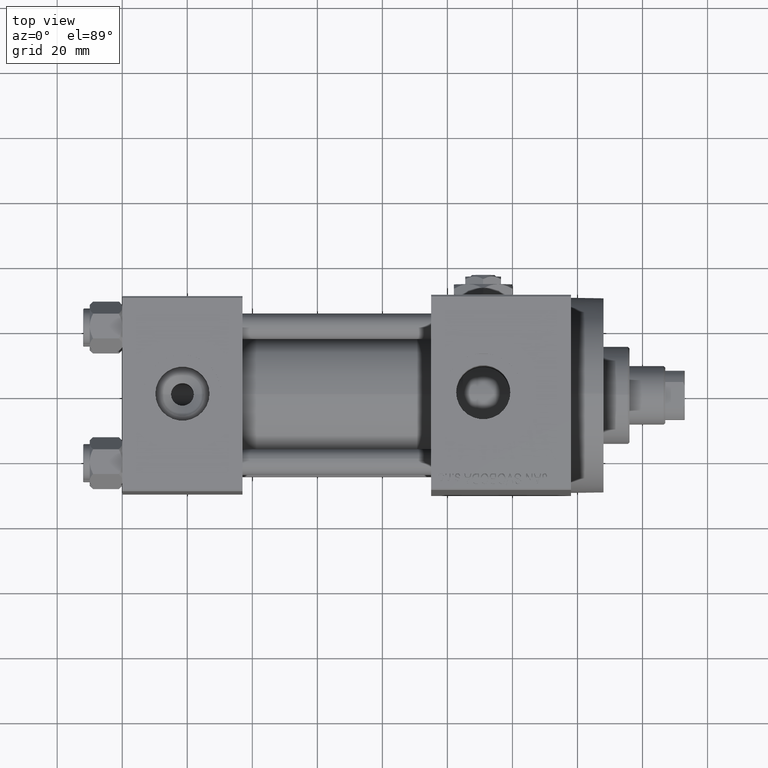
[diagram: clean part render]
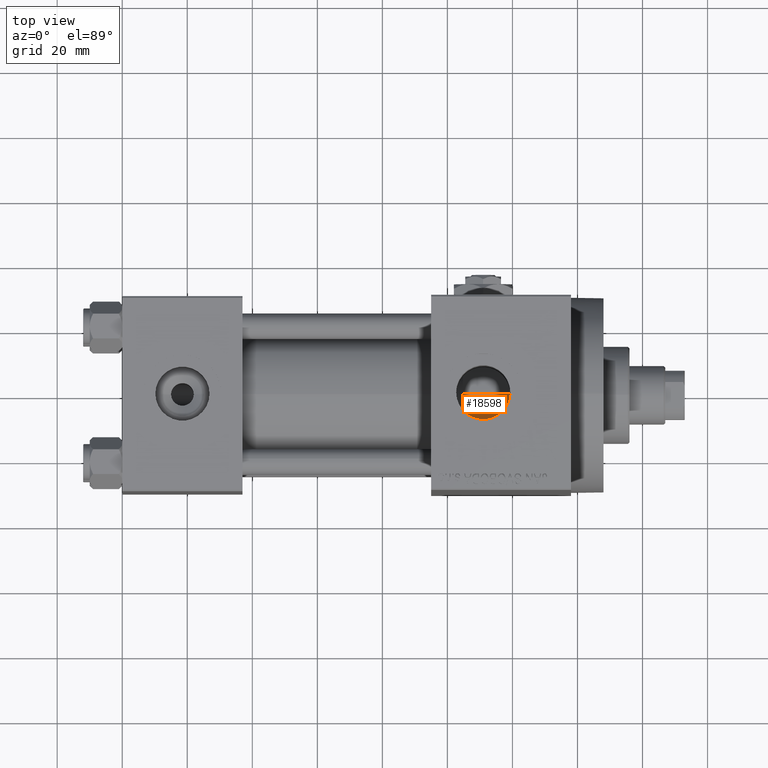
[diagram: same view with one face highlighted and labeled with its STEP entity id]
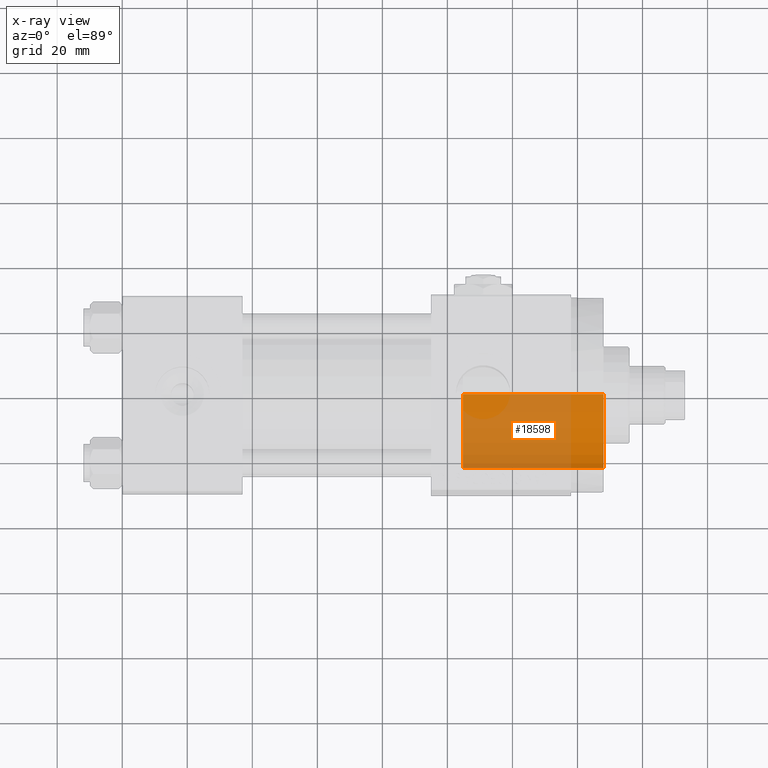
[diagram: x-ray of the same camera — body ghosted, the highlighted face saturated]
A machine part, top view. The second image highlights one B-rep face of the part: STEP entity #18598.
The next image is the same camera in x-ray: the body ghosted, the highlighted face saturated — about 68% of this face is hidden behind the body in this view.
In plain terms, the highlighted cylindrical surface (partial cylindrical patch) has radius 22.5 mm, axis along (-1, 0, 0).
Its self-contained STEP definition (entity closure, byte-faithful):
#544 = LINE ( 'NONE', #24055, #3751 ) ;
#2946 = EDGE_CURVE ( 'NONE', #41215, #20543, #25640, .T. ) ;
#3751 = VECTOR ( 'NONE', #12433, 1000.000000000000000 ) ;
#5878 = ORIENTED_EDGE ( 'NONE', *, *, #2946, .T. ) ;
#5934 = CARTESIAN_POINT ( 'NONE',  ( 22.50000000000000355, 2.755455298081545172E-15, 43.25999999999999801 ) ) ;
#6900 = CIRCLE ( 'NONE', #26659, 22.50000000000000355 ) ;
#9244 = CARTESIAN_POINT ( 'NONE',  ( -22.50000000000000355, 0.000000000000000000, 0.000000000000000000 ) ) ;
#9744 = AXIS2_PLACEMENT_3D ( 'NONE', #12855, #16571, #43068 ) ;
#12433 = DIRECTION ( 'NONE',  ( -0.000000000000000000, -0.000000000000000000, -1.000000000000000000 ) ) ;
#12855 = CARTESIAN_POINT ( 'NONE',  ( 0.000000000000000000, 0.000000000000000000, 43.25999999999999801 ) ) ;
#13347 = CYLINDRICAL_SURFACE ( 'NONE', #9744, 22.50000000000000355 ) ;
#14148 = DIRECTION ( 'NONE',  ( 1.000000000000000000, 0.000000000000000000, 0.000000000000000000 ) ) ;
#16571 = DIRECTION ( 'NONE',  ( -0.000000000000000000, -0.000000000000000000, -1.000000000000000000 ) ) ;
#18598 = ADVANCED_FACE ( 'NONE', ( #47487 ), #13347, .T. ) ;
#18845 = EDGE_CURVE ( 'NONE', #30603, #41215, #48467, .T. ) ;
#20543 = VERTEX_POINT ( 'NONE', #9244 ) ;
#22064 = DIRECTION ( 'NONE',  ( 0.000000000000000000, 0.000000000000000000, 1.000000000000000000 ) ) ;
#22350 = VECTOR ( 'NONE', #44287, 1000.000000000000000 ) ;
#24055 = CARTESIAN_POINT ( 'NONE',  ( -22.50000000000000355, 0.000000000000000000, 43.25999999999999801 ) ) ;
#24070 = DIRECTION ( 'NONE',  ( 1.000000000000000000, 0.000000000000000000, 0.000000000000000000 ) ) ;
#24726 = CARTESIAN_POINT ( 'NONE',  ( -22.50000000000000355, 0.000000000000000000, 43.25999999999999801 ) ) ;
#25640 = CIRCLE ( 'NONE', #39864, 22.50000000000000355 ) ;
#26659 = AXIS2_PLACEMENT_3D ( 'NONE', #34954, #42886, #24070 ) ;
#30197 = ORIENTED_EDGE ( 'NONE', *, *, #32239, .F. ) ;
#30507 = VERTEX_POINT ( 'NONE', #24726 ) ;
#30603 = VERTEX_POINT ( 'NONE', #41544 ) ;
#32239 = EDGE_CURVE ( 'NONE', #30507, #20543, #544, .T. ) ;
#33700 = EDGE_LOOP ( 'NONE', ( #38250, #36461, #5878, #30197 ) ) ;
#34870 = EDGE_CURVE ( 'NONE', #30603, #30507, #6900, .T. ) ;
#34954 = CARTESIAN_POINT ( 'NONE',  ( 0.000000000000000000, 0.000000000000000000, 43.25999999999999801 ) ) ;
#36461 = ORIENTED_EDGE ( 'NONE', *, *, #18845, .T. ) ;
#38250 = ORIENTED_EDGE ( 'NONE', *, *, #34870, .F. ) ;
#39864 = AXIS2_PLACEMENT_3D ( 'NONE', #48050, #22064, #14148 ) ;
#41215 = VERTEX_POINT ( 'NONE', #46273 ) ;
#41544 = CARTESIAN_POINT ( 'NONE',  ( 22.50000000000000355, 2.755455298081545172E-15, 43.25999999999999801 ) ) ;
#42886 = DIRECTION ( 'NONE',  ( 0.000000000000000000, 0.000000000000000000, 1.000000000000000000 ) ) ;
#43068 = DIRECTION ( 'NONE',  ( -1.000000000000000000, 0.000000000000000000, 0.000000000000000000 ) ) ;
#44287 = DIRECTION ( 'NONE',  ( -0.000000000000000000, -0.000000000000000000, -1.000000000000000000 ) ) ;
#46273 = CARTESIAN_POINT ( 'NONE',  ( 22.50000000000000355, 2.755455298081545172E-15, 0.000000000000000000 ) ) ;
#47487 = FACE_OUTER_BOUND ( 'NONE', #33700, .T. ) ;
#48050 = CARTESIAN_POINT ( 'NONE',  ( 0.000000000000000000, 0.000000000000000000, 0.000000000000000000 ) ) ;
#48467 = LINE ( 'NONE', #5934, #22350 ) ;